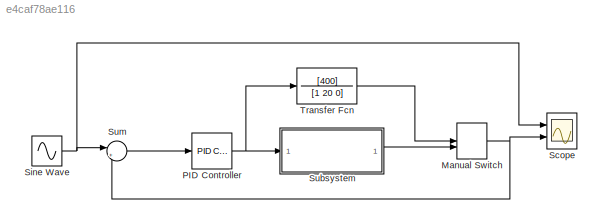
MODEL slx_e4caf78ae116
KIND model
CONFIG AbsTol = auto
CONFIG FixedStep = auto
CONFIG MaxStep = auto
CONFIG MinStep = auto
CONFIG RelTol = 1e-3
CONFIG SampleTimeConstraint = Unconstrained
CONFIG Solver = ode45
CONFIG SolverMode = Auto
CONFIG SolverName = ode45
CONFIG StartTime = 0.0
CONFIG StopTime = 10.0
BLOCK [ManualSwitch] Manual Switch
  CurrentSetting = 0
BLOCK [Reference] PID Controller  REF=simulink/Continuous/PID Controller
  Ports = [1, 1]
  SourceBlock = simulink/Continuous/PID Controller
  SourceType = PID 1dof
BLOCK [Scope] Scope
  NumInputPorts = 2
  Ports = [2]
  ScopeSpecificationString = Simulink.scopes.TimeScopeBlockCfg('CurrentConfiguration', extmgr.ConfigurationSet(extmgr.Configuration('Core','General UI',true),extmgr.Configuration('Core','Source UI',true),extmgr.Configuration('Sources','WiredSimulink',true),extmgr.Configuration('Visuals','Time Domain',true,'SerializedDisplays',{struct('MinYLimReal','-1.2','MaxYLimReal','1.2','YLabelReal','','MinYLimMag','0.00000','MaxYLimMag',...<+1979ch>
BLOCK [Sin] Sine Wave
  Amplitude = 0.5
  Frequency = 2*pi
  Ports = [0, 1]
  SampleTime = 0
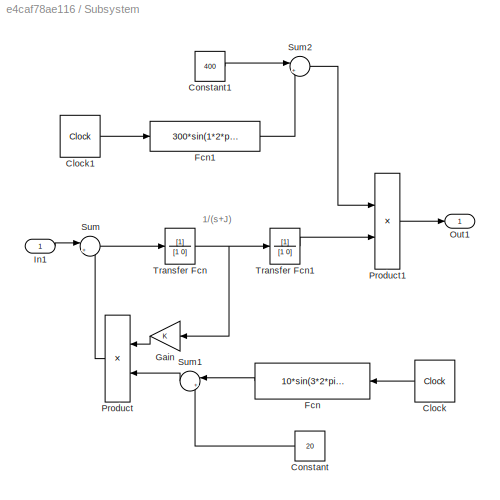
BLOCK [SubSystem] Subsystem
  Ports = [1, 1]
  RequestExecContextInheritance = off
  Variant = off
BLOCK [Clock] Subsystem/Clock
  Decimation = 1
  DisplayTime = on
BLOCK [Clock] Subsystem/Clock1
  Decimation = 1
  DisplayTime = on
BLOCK [Constant] Subsystem/Constant
  Value = 20
BLOCK [Constant] Subsystem/Constant1
  Value = 400
BLOCK [Fcn] Subsystem/Fcn
  Expr = 10*sin(3*2*pi*u)
BLOCK [Fcn] Subsystem/Fcn1
  Expr = 300*sin(1*2*pi*u)
BLOCK [Gain] Subsystem/Gain
  OutDataTypeStr = Inherit: Inherit via internal rule
  ParamDataTypeStr = Inherit: Inherit via internal rule
  SaturateOnIntegerOverflow = off
BLOCK [Inport] Subsystem/In1
  IconDisplay = Port number
BLOCK [Outport] Subsystem/Out1
  IconDisplay = Port number
BLOCK [Product] Subsystem/Product
  InputSameDT = off
  OutDataTypeStr = Inherit: Inherit via internal rule
  Ports = [2, 1]
  RndMeth = Floor
  SaturateOnIntegerOverflow = off
BLOCK [Product] Subsystem/Product1
  InputSameDT = off
  OutDataTypeStr = Inherit: Inherit via internal rule
  Ports = [2, 1]
  RndMeth = Floor
  SaturateOnIntegerOverflow = off
BLOCK [Sum] Subsystem/Sum
  IconShape = round
  InputSameDT = off
  Inputs = |+-
  OutDataTypeStr = Inherit: Inherit via internal rule
  Ports = [2, 1]
  SaturateOnIntegerOverflow = off
BLOCK [Sum] Subsystem/Sum1
  IconShape = round
  InputSameDT = off
  Inputs = |++
  OutDataTypeStr = Inherit: Inherit via internal rule
  Ports = [2, 1]
  SaturateOnIntegerOverflow = off
BLOCK [Sum] Subsystem/Sum2
  IconShape = round
  InputSameDT = off
  Inputs = |++
  OutDataTypeStr = Inherit: Inherit via internal rule
  Ports = [2, 1]
  SaturateOnIntegerOverflow = off
BLOCK [TransferFcn] Subsystem/Transfer Fcn
  Denominator = [1 0]
BLOCK [TransferFcn] Subsystem/Transfer Fcn1
  Denominator = [1 0]
BLOCK [Sum] Sum
  IconShape = round
  InputSameDT = off
  Inputs = |+-
  OutDataTypeStr = Inherit: Inherit via internal rule
  Ports = [2, 1]
  SaturateOnIntegerOverflow = off
BLOCK [TransferFcn] Transfer Fcn
  Denominator = [1 20 0]
  Numerator = [400]
ANNOTATION Subsystem: 1/(s+J)
NET Manual Switch:1 -> Scope:2, Sum:2
NET PID Controller:1 -> Subsystem:1, Transfer Fcn:1
NET Sine Wave:1 -> Scope:1, Sum:1
LINE Subsystem/Clock1:1 -> Subsystem/Fcn1:1
LINE Subsystem/Clock:1 -> Subsystem/Fcn:1
LINE Subsystem/Constant1:1 -> Subsystem/Sum2:1
LINE Subsystem/Constant:1 -> Subsystem/Sum1:2
LINE Subsystem/Fcn1:1 -> Subsystem/Sum2:2
LINE Subsystem/Fcn:1 -> Subsystem/Sum1:1
LINE Subsystem/Gain:1 -> Subsystem/Product:1
LINE Subsystem/In1:1 -> Subsystem/Sum:1
LINE Subsystem/Product1:1 -> Subsystem/Out1:1
LINE Subsystem/Product:1 -> Subsystem/Sum:2
LINE Subsystem/Sum1:1 -> Subsystem/Product:2
LINE Subsystem/Sum2:1 -> Subsystem/Product1:1
LINE Subsystem/Sum:1 -> Subsystem/Transfer Fcn:1
LINE Subsystem/Transfer Fcn1:1 -> Subsystem/Product1:2
NET Subsystem/Transfer Fcn:1 -> Subsystem/Gain:1, Subsystem/Transfer Fcn1:1
LINE Subsystem:1 -> Manual Switch:2
LINE Sum:1 -> PID Controller:1
LINE Transfer Fcn:1 -> Manual Switch:1
note: NET lines group one-source signal fan-out (src -> all destinations, sorted); 1:1 wires keep LINE
